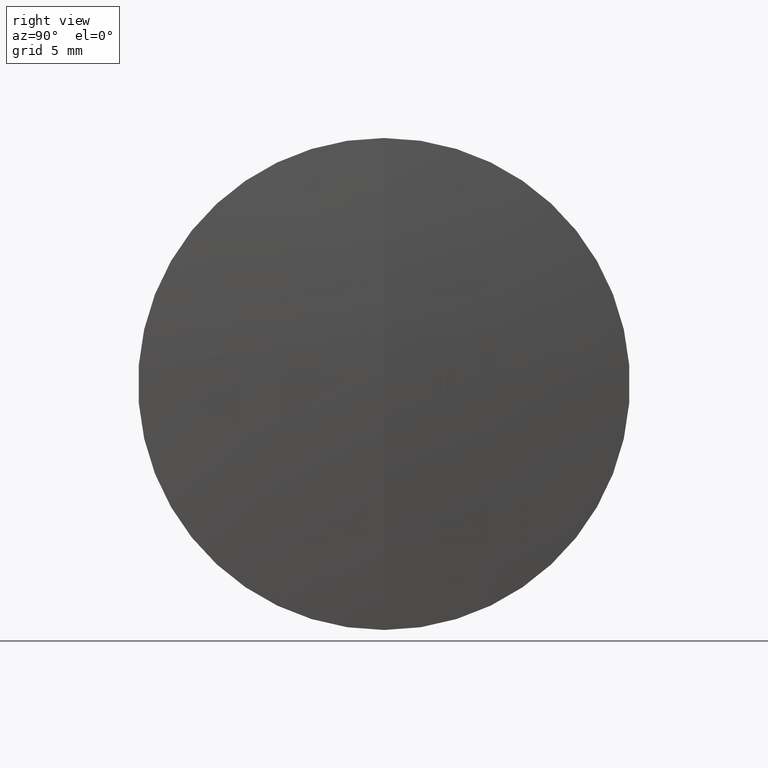
[diagram: clean part render]
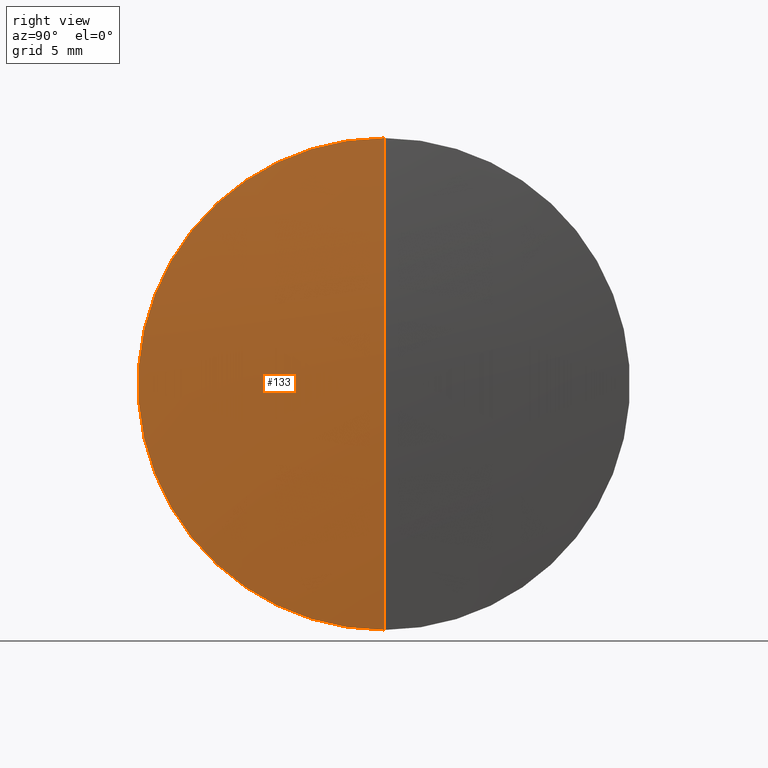
[diagram: same view with one face highlighted and labeled with its STEP entity id]
A machine part, right view. The second image highlights one B-rep face of the part: STEP entity #133.
In plain terms, the highlighted spherical surface has radius 143.92 mm.
Its self-contained STEP definition (entity closure, byte-faithful):
#23 = AXIS2_PLACEMENT_3D ( 'NONE', #340, #222, #260 ) ;
#28 = VERTEX_POINT ( 'NONE', #254 ) ;
#46 = VERTEX_POINT ( 'NONE', #89 ) ;
#60 = DIRECTION ( 'NONE',  ( 0.0000000000000000000, 1.000000000000000000, -0.0000000000000000000 ) ) ;
#61 = CARTESIAN_POINT ( 'NONE',  ( 31.22023858577233200, 0.0000000000000000000, -8.812558366664354600E-015 ) ) ;
#73 = ORIENTED_EDGE ( 'NONE', *, *, #119, .F. ) ;
#82 = CIRCLE ( 'NONE', #341, 143.9199999999999900 ) ;
#89 = CARTESIAN_POINT ( 'NONE',  ( 30.65879745129665300, -1.555301434917133500E-015, 12.69999999999995800 ) ) ;
#106 = CIRCLE ( 'NONE', #151, 12.69999999999999800 ) ;
#119 = EDGE_CURVE ( 'NONE', #245, #28, #82, .T. ) ;
#128 = EDGE_CURVE ( 'NONE', #28, #46, #106, .T. ) ;
#133 = ADVANCED_FACE ( 'NONE', ( #256 ), #337, .T. ) ;
#150 = CARTESIAN_POINT ( 'NONE',  ( -112.6997614142276700, 0.0000000000000000000, 0.0000000000000000000 ) ) ;
#151 = AXIS2_PLACEMENT_3D ( 'NONE', #195, #298, #283 ) ;
#154 = DIRECTION ( 'NONE',  ( 0.0000000000000000000, -1.000000000000000000, -1.224646799147353200E-016 ) ) ;
#177 = CIRCLE ( 'NONE', #189, 143.9199999999999900 ) ;
#189 = AXIS2_PLACEMENT_3D ( 'NONE', #150, #154, #239 ) ;
#193 = DIRECTION ( 'NONE',  ( 0.0000000000000000000, 0.0000000000000000000, 1.000000000000000000 ) ) ;
#195 = CARTESIAN_POINT ( 'NONE',  ( 30.65879745129665000, 0.0000000000000000000, 0.0000000000000000000 ) ) ;
#202 = ORIENTED_EDGE ( 'NONE', *, *, #128, .F. ) ;
#206 = CARTESIAN_POINT ( 'NONE',  ( -112.6997614142276700, 0.0000000000000000000, 0.0000000000000000000 ) ) ;
#215 = EDGE_CURVE ( 'NONE', #245, #46, #177, .T. ) ;
#222 = DIRECTION ( 'NONE',  ( -0.0000000000000000000, -1.000000000000000000, -0.0000000000000000000 ) ) ;
#239 = DIRECTION ( 'NONE',  ( 0.0000000000000000000, 1.224646799147353500E-016, -1.000000000000000000 ) ) ;
#245 = VERTEX_POINT ( 'NONE', #61 ) ;
#254 = CARTESIAN_POINT ( 'NONE',  ( 30.65879745129665300, 0.0000000000000000000, -12.69999999999995800 ) ) ;
#256 = FACE_OUTER_BOUND ( 'NONE', #326, .T. ) ;
#260 = DIRECTION ( 'NONE',  ( 0.0000000000000000000, 0.0000000000000000000, -1.000000000000000000 ) ) ;
#283 = DIRECTION ( 'NONE',  ( 0.0000000000000000000, 0.0000000000000000000, 1.000000000000000000 ) ) ;
#298 = DIRECTION ( 'NONE',  ( -1.000000000000000000, -0.0000000000000000000, -0.0000000000000000000 ) ) ;
#326 = EDGE_LOOP ( 'NONE', ( #73, #343, #202 ) ) ;
#337 = SPHERICAL_SURFACE ( 'NONE', #23, 143.9199999999999900 ) ;
#340 = CARTESIAN_POINT ( 'NONE',  ( -112.6997614142276700, 0.0000000000000000000, 0.0000000000000000000 ) ) ;
#341 = AXIS2_PLACEMENT_3D ( 'NONE', #206, #60, #193 ) ;
#343 = ORIENTED_EDGE ( 'NONE', *, *, #215, .T. ) ;